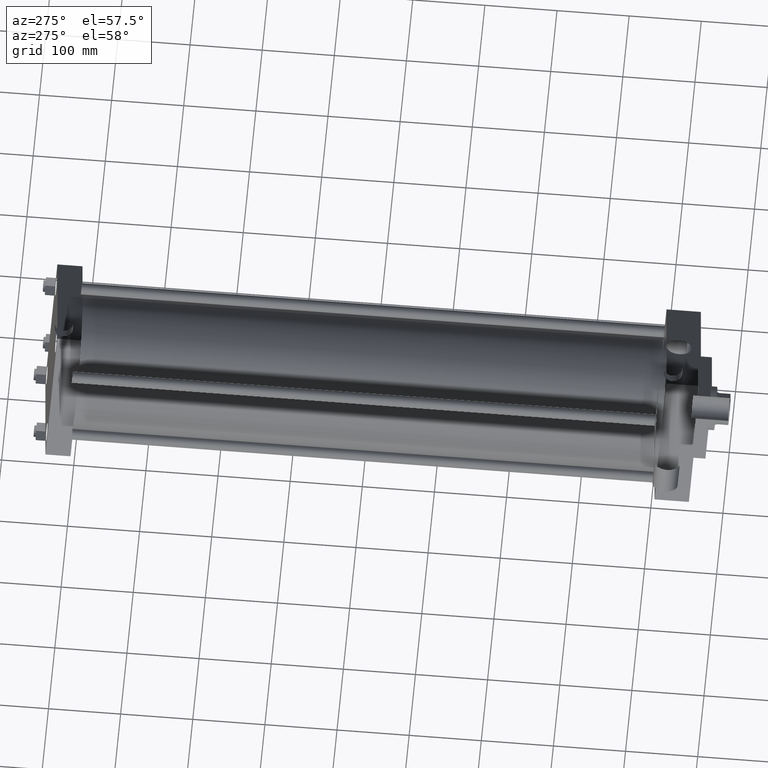
[diagram: clean part render]
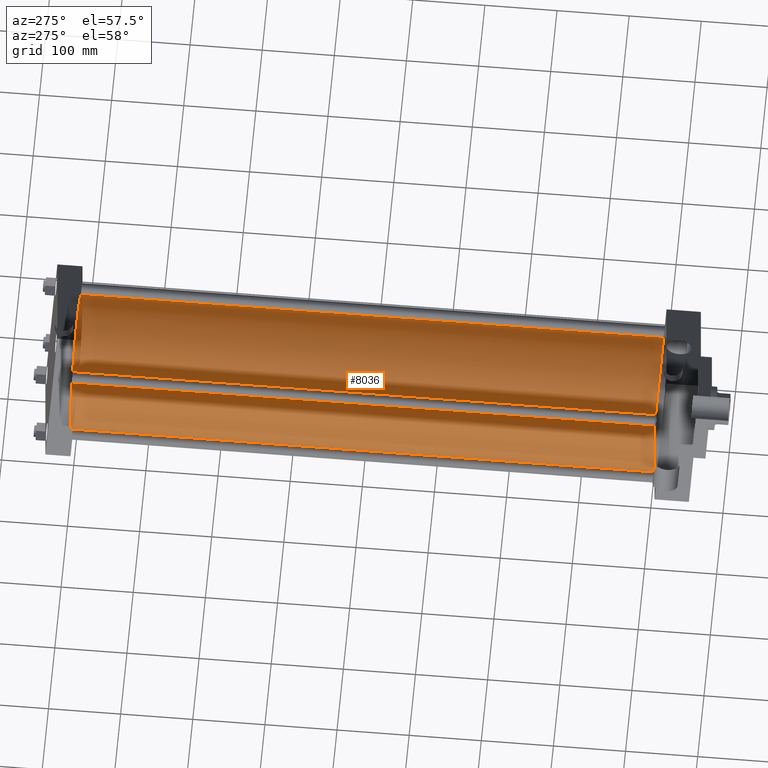
[diagram: same view with one face highlighted and labeled with its STEP entity id]
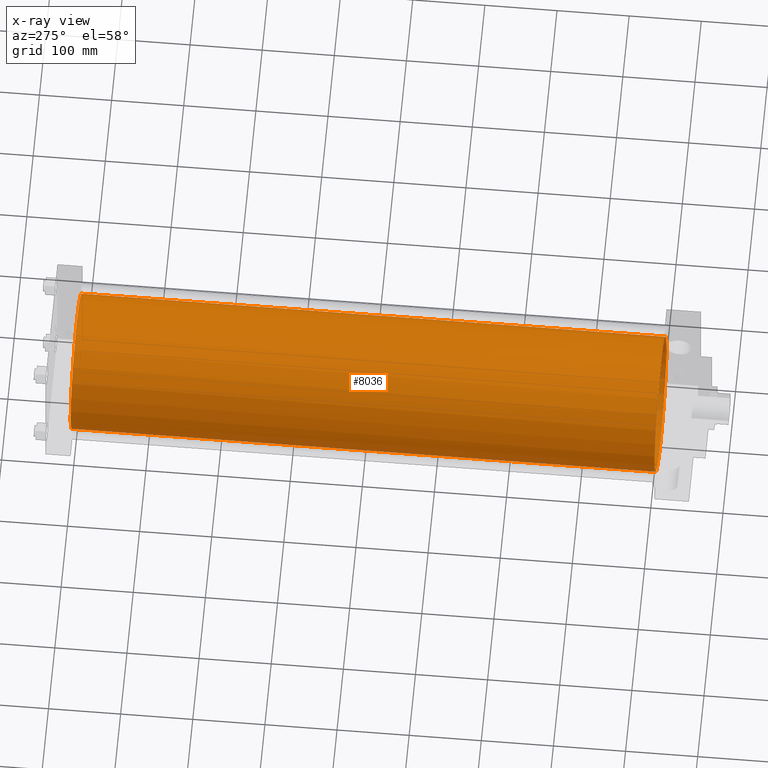
[diagram: x-ray of the same camera — body ghosted, the highlighted face saturated]
A machine part, auxiliary view. The second image highlights one B-rep face of the part: STEP entity #8036.
The next image is the same camera in x-ray: the body ghosted, the highlighted face saturated — about 0% of this face is hidden behind the body in this view.
In plain terms, the highlighted cylindrical surface (bore or boss wall) has radius 93.6625 mm, axis along (0, -1, 0).
Its self-contained STEP definition (entity closure, byte-faithful):
#544=EDGE_CURVE('',#550,#550,#545,.T.);
#545=CIRCLE('',#546,9.366250000E+001);
#546=AXIS2_PLACEMENT_3D('',#547,#548,#549);
#547=CARTESIAN_POINT('',(0.000000000E+000,9.525000000E+001,0.000000000E+000));
#548=DIRECTION('',(0.0E+000,-1.0E+000,0.0E+000));
#549=DIRECTION('',(0.0E+000,0.0E+000,-1.0E+000));
#550=VERTEX_POINT('',#551);
#551=CARTESIAN_POINT('',(0.000000000E+000,9.525000000E+001,-9.366250000E+001));
#1309=FACE_OUTER_BOUND('',#1311,.T.);
#1310=FACE_BOUND('',#1312,.T.);
#1311=EDGE_LOOP('',(#1313));
#1312=EDGE_LOOP('',(#1322));
#1313=ORIENTED_EDGE('',*,*,#1314,.F.);
#1314=EDGE_CURVE('',#1320,#1320,#1315,.T.);
#1315=CIRCLE('',#1316,9.366250000E+001);
#1316=AXIS2_PLACEMENT_3D('',#1317,#1318,#1319);
#1317=CARTESIAN_POINT('',(0.000000000E+000,9.048750000E+002,0.000000000E+000));
#1318=DIRECTION('',(0.0E+000,1.0E+000,0.0E+000));
#1319=DIRECTION('',(1.0E+000,0.0E+000,0.0E+000));
#1320=VERTEX_POINT('',#1321);
#1321=CARTESIAN_POINT('',(9.366250000E+001,9.048750000E+002,0.000000000E+000));
#1322=ORIENTED_EDGE('',*,*,#544,.F.);
#1323=CYLINDRICAL_SURFACE('',#1324,9.366250000E+001);
#1324=AXIS2_PLACEMENT_3D('',#1325,#1326,#1327);
#1325=CARTESIAN_POINT('',(0.000000000E+000,9.048750000E+002,0.000000000E+000));
#1326=DIRECTION('',(0.0E+000,-1.0E+000,0.0E+000));
#1327=DIRECTION('',(0.0E+000,0.0E+000,-1.0E+000));
#8036=ADVANCED_FACE('',(#1309,#1310),#1323,.T.);